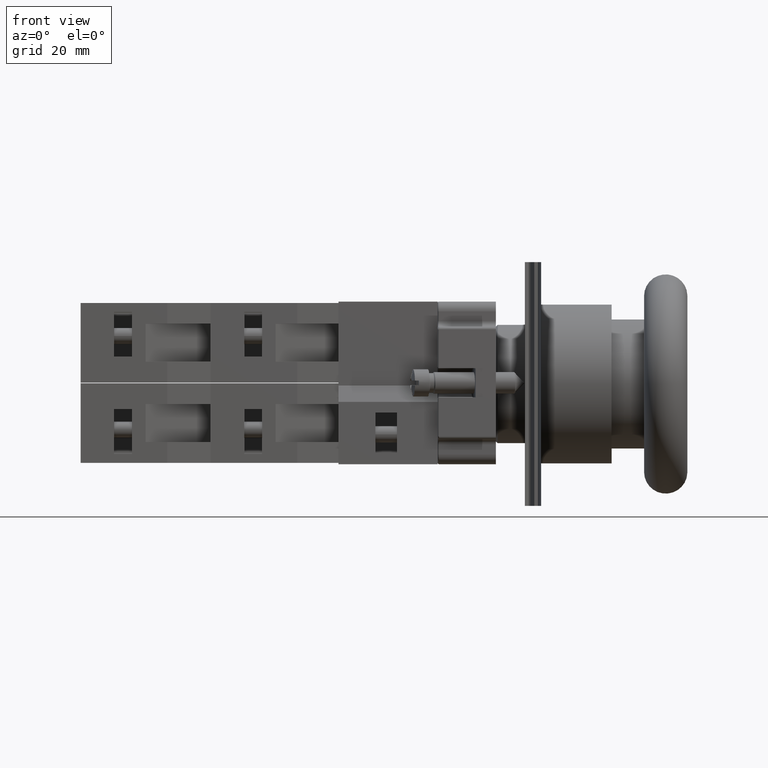
[diagram: clean part render]
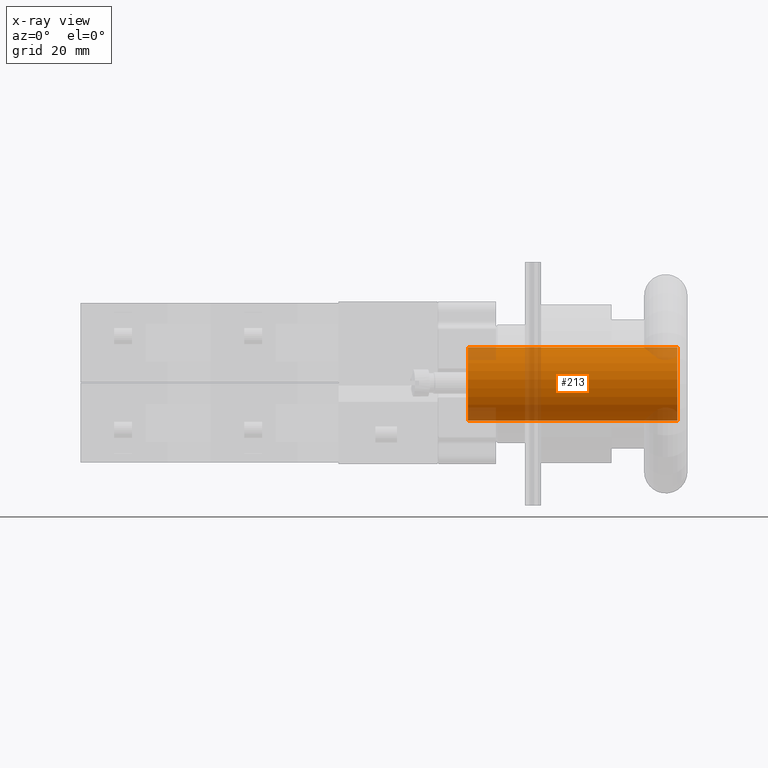
[diagram: x-ray — body ghosted, one internal face saturated and labeled with its STEP entity id]
A machine part, front view, then the same camera in x-ray: the body is ghosted and one INTERNAL B-rep face — a face not visible from any outside direction — is saturated and labeled: STEP entity #213.
In plain terms, the highlighted cylindrical surface (bore or boss wall) has radius 6.75 mm, axis along (1, 0, 0).
Its self-contained STEP definition (entity closure, byte-faithful):
#182=CARTESIAN_POINT('',(-21.670740052161065,-0.076883860580366,6.750000000000000));
#183=VERTEX_POINT('',#182);
#184=CARTESIAN_POINT('',(-21.670740052161065,-0.076883860580367,0.0));
#185=DIRECTION('',(-1.0,0.0,0.0));
#186=DIRECTION('',(0.0,0.0,-1.0));
#187=AXIS2_PLACEMENT_3D('',#184,#185,#186);
#188=CIRCLE('',#187,6.750000000000000);
#189=EDGE_CURVE('',#183,#183,#188,.T.);
#194=CARTESIAN_POINT('',(-23.970740052161066,-0.076883860580367,0.0));
#195=DIRECTION('',(1.0,4.654136E-018,0.0));
#196=DIRECTION('',(0.0,0.0,-1.0));
#197=AXIS2_PLACEMENT_3D('',#194,#195,#196);
#198=CYLINDRICAL_SURFACE('',#197,6.750000000000000);
#199=ORIENTED_EDGE('',*,*,#189,.T.);
#200=EDGE_LOOP('',(#199));
#201=FACE_OUTER_BOUND('',#200,.T.);
#202=CARTESIAN_POINT('',(17.029259947838938,-0.076883860580366,6.750000000000000));
#203=VERTEX_POINT('',#202);
#204=CARTESIAN_POINT('',(17.029259947838938,-0.076883860580367,0.0));
#205=DIRECTION('',(-1.0,0.0,0.0));
#206=DIRECTION('',(0.0,0.0,-1.0));
#207=AXIS2_PLACEMENT_3D('',#204,#205,#206);
#208=CIRCLE('',#207,6.750000000000000);
#209=EDGE_CURVE('',#203,#203,#208,.T.);
#210=ORIENTED_EDGE('',*,*,#209,.F.);
#211=EDGE_LOOP('',(#210));
#212=FACE_BOUND('',#211,.T.);
#213=ADVANCED_FACE('',(#201,#212),#198,.F.);